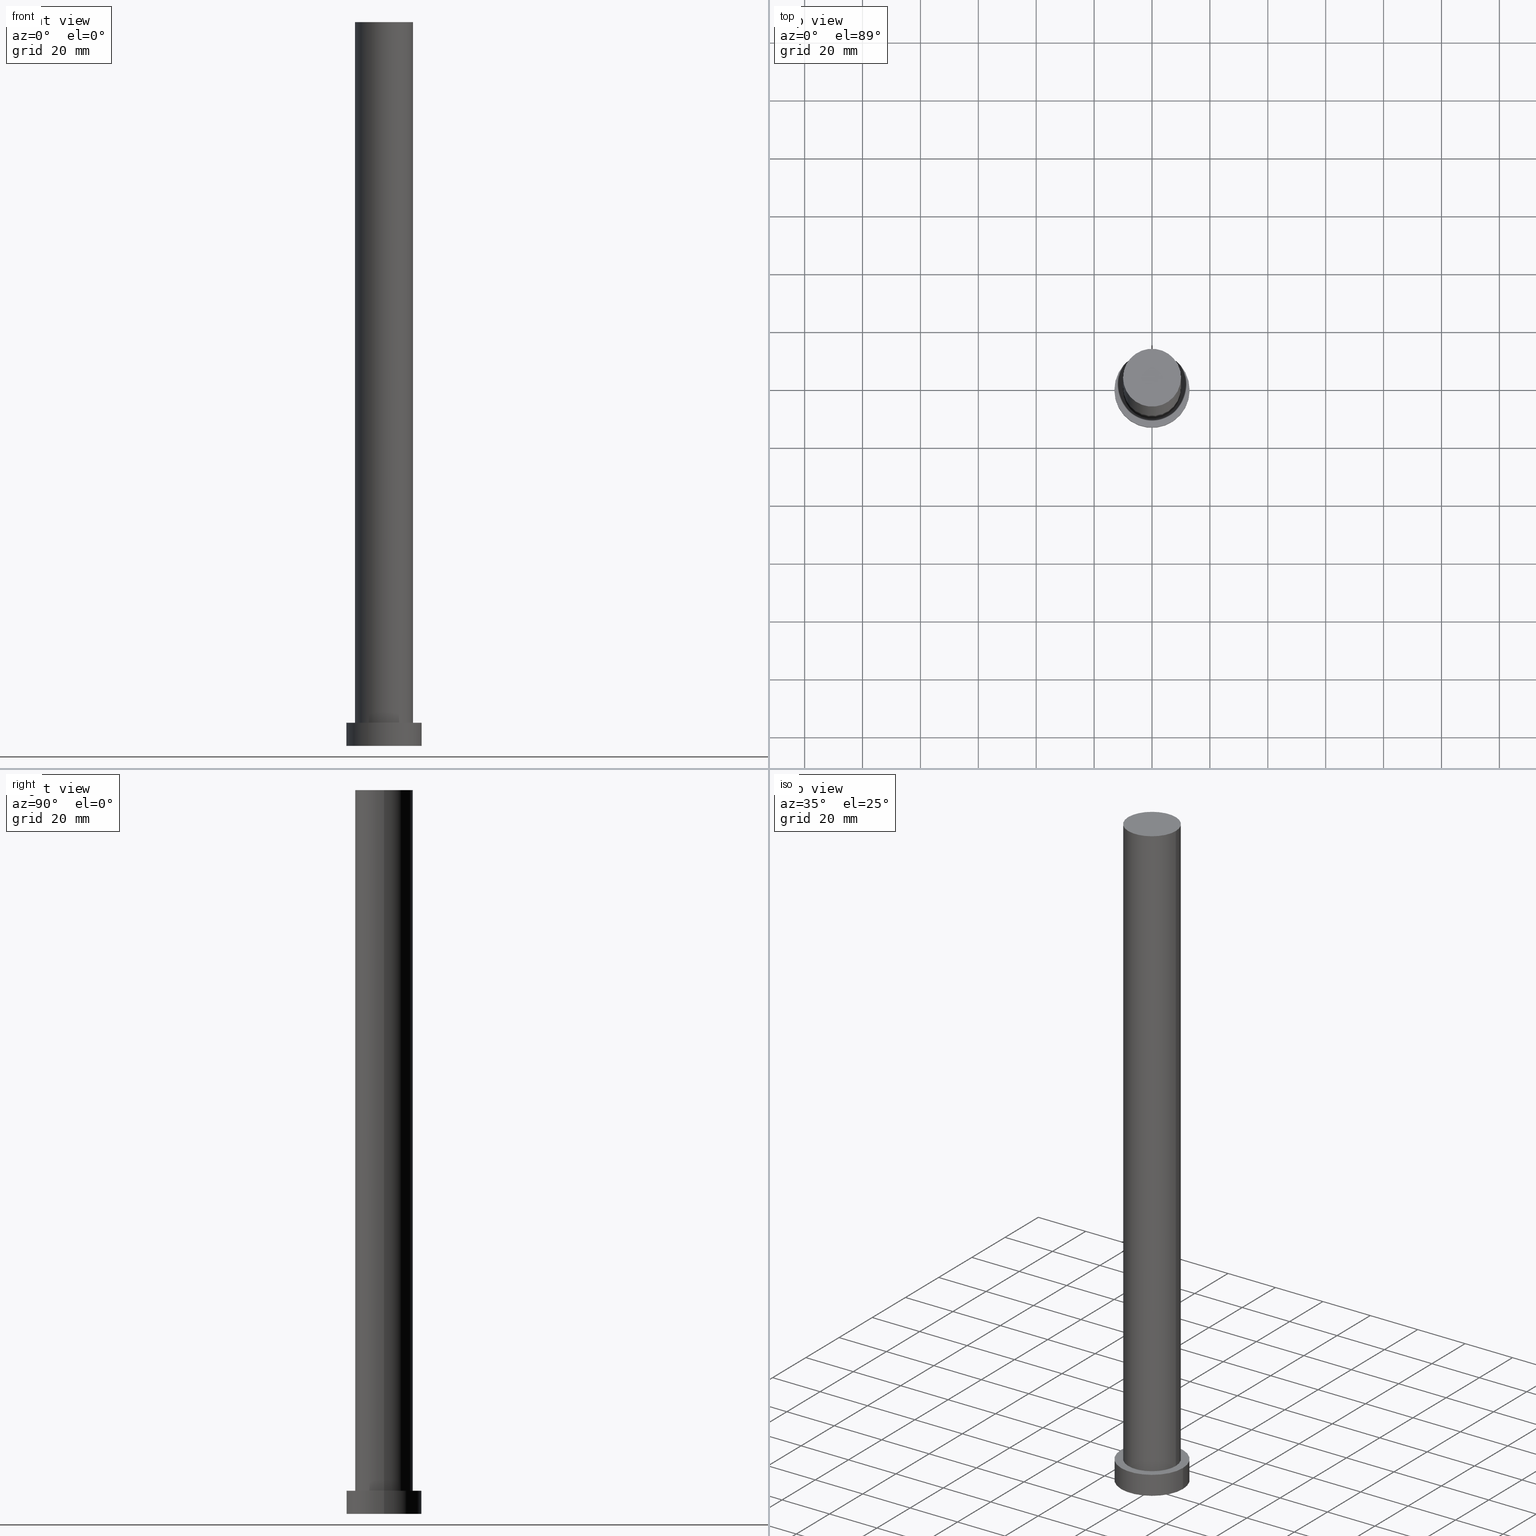
[diagram: canonical four-view strip — front | top / right | iso, engineering-drawing reading convention]
A machine part, canonical four-view strip (front | top / right | iso — engineering-drawing reading convention). The complete STEP part file that produces these views, byte-faithful:
ISO-10303-21;
HEADER;
FILE_DESCRIPTION (( 'STEP AP203' ),
    '1' );
FILE_NAME ('96cc.STEP',
    '2023-02-13T07:54:06',
    ( '' ),
    ( '' ),
    'SwSTEP 2.0',
    'SolidWorks 2019',
    '' );
FILE_SCHEMA (( 'CONFIG_CONTROL_DESIGN' ));
ENDSEC;

DATA;
#1 = DIRECTION ( 'NONE',  ( 1.000000000000000000, 0.000000000000000000, 0.000000000000000000 ) ) ;
#2 = CYLINDRICAL_SURFACE ( 'NONE', #174, 10.00000000000000000 ) ;
#3 = EDGE_LOOP ( 'NONE', ( #165, #99 ) ) ;
#4 = DIRECTION ( 'NONE',  ( 0.000000000000000000, 0.000000000000000000, 1.000000000000000000 ) ) ;
#5 = FACE_BOUND ( 'NONE', #244, .T. ) ;
#6 = DIRECTION ( 'NONE',  ( 0.000000000000000000, 0.000000000000000000, 1.000000000000000000 ) ) ;
#7 = CARTESIAN_POINT ( 'NONE',  ( 0.000000000000000000, 0.000000000000000000, 8.000000000000000000 ) ) ;
#8 = AXIS2_PLACEMENT_3D ( 'NONE', #200, #137, #1 ) ;
#9 = DATE_AND_TIME ( #41, #160 ) ;
#10 = PRODUCT_DEFINITION_SHAPE ( 'NONE', 'NONE',  #90 ) ;
#11 = ORIENTED_EDGE ( 'NONE', *, *, #172, .T. ) ;
#12 = EDGE_LOOP ( 'NONE', ( #141, #186 ) ) ;
#13 = PERSON_AND_ORGANIZATION_ROLE ( 'design_supplier' ) ;
#14 = EDGE_CURVE ( 'NONE', #49, #42, #93, .T. ) ;
#15 = COORDINATED_UNIVERSAL_TIME_OFFSET ( 1, 0, .AHEAD. ) ;
#16 = CIRCLE ( 'NONE', #156, 10.00000000000000000 ) ;
#17 = DIRECTION ( 'NONE',  ( -1.000000000000000000, 0.000000000000000000, 0.000000000000000000 ) ) ;
#18 = AXIS2_PLACEMENT_3D ( 'NONE', #97, #61, #78 ) ;
#19 = CARTESIAN_POINT ( 'NONE',  ( 0.000000000000000000, 0.000000000000000000, 8.000000000000000000 ) ) ;
#20 = CARTESIAN_POINT ( 'NONE',  ( 13.00000000000000178, 1.592040838891559293E-15, 0.000000000000000000 ) ) ;
#21 = DIRECTION ( 'NONE',  ( 0.000000000000000000, 0.000000000000000000, 1.000000000000000000 ) ) ;
#22 = CIRCLE ( 'NONE', #8, 13.00000000000000178 ) ;
#23 = AXIS2_PLACEMENT_3D ( 'NONE', #159, #62, #143 ) ;
#24 = CARTESIAN_POINT ( 'NONE',  ( 13.00000000000000178, 1.592040838891559293E-15, 8.000000000000000000 ) ) ;
#25 = APPLICATION_CONTEXT ( 'configuration controlled 3d designs of mechanical parts and assemblies' ) ;
#26 = SHAPE_DEFINITION_REPRESENTATION ( #10, #230 ) ;
#27 = DATE_AND_TIME ( #44, #166 ) ;
#28 = ORIENTED_EDGE ( 'NONE', *, *, #239, .F. ) ;
#29 = EDGE_LOOP ( 'NONE', ( #209, #206 ) ) ;
#30 = CARTESIAN_POINT ( 'NONE',  ( 10.00000000000000000, 1.224646799147353256E-15, 250.0000000000000000 ) ) ;
#31 = VERTEX_POINT ( 'NONE', #20 ) ;
#32 = EDGE_CURVE ( 'NONE', #31, #213, #216, .T. ) ;
#33 = DIRECTION ( 'NONE',  ( -0.000000000000000000, -0.000000000000000000, -1.000000000000000000 ) ) ;
#34 = DIRECTION ( 'NONE',  ( 0.000000000000000000, 0.000000000000000000, 1.000000000000000000 ) ) ;
#35 = CARTESIAN_POINT ( 'NONE',  ( -13.00000000000000178, 0.000000000000000000, 8.000000000000000000 ) ) ;
#36 = DIRECTION ( 'NONE',  ( -1.000000000000000000, 0.000000000000000000, 0.000000000000000000 ) ) ;
#37 = ORIENTED_EDGE ( 'NONE', *, *, #96, .F. ) ;
#38 = DIRECTION ( 'NONE',  ( 1.000000000000000000, 0.000000000000000000, 0.000000000000000000 ) ) ;
#39 = CARTESIAN_POINT ( 'NONE',  ( -13.00000000000000178, 0.000000000000000000, 0.000000000000000000 ) ) ;
#40 = CARTESIAN_POINT ( 'NONE',  ( 0.000000000000000000, 0.000000000000000000, 0.000000000000000000 ) ) ;
#41 = CALENDAR_DATE ( 2023, 13, 2 ) ;
#42 = VERTEX_POINT ( 'NONE', #95 ) ;
#43 = ORGANIZATION ( 'NEUR�EN�', 'NEUR�EN�', '' ) ;
#44 = CALENDAR_DATE ( 2023, 13, 2 ) ;
#45 = UNCERTAINTY_MEASURE_WITH_UNIT (LENGTH_MEASURE( 1.000000000000000082E-05 ), #236, 'distance_accuracy_value', 'NONE');
#46 = APPROVAL_STATUS ( 'not_yet_approved' ) ;
#47 = APPROVAL_STATUS ( 'not_yet_approved' ) ;
#48 = EDGE_LOOP ( 'NONE', ( #125, #217, #190, #118 ) ) ;
#49 = VERTEX_POINT ( 'NONE', #30 ) ;
#50 = DATE_TIME_ROLE ( 'classification_date' ) ;
#51 = CIRCLE ( 'NONE', #173, 13.00000000000000178 ) ;
#52 = PRODUCT_RELATED_PRODUCT_CATEGORY ( 'detail', '', ( #69 ) ) ;
#53 = EDGE_LOOP ( 'NONE', ( #108, #107, #11, #28 ) ) ;
#54 = PERSON_AND_ORGANIZATION ( #128, #43 ) ;
#55 = APPROVAL_PERSON_ORGANIZATION ( #129, #198, #127 ) ;
#56 = PERSON_AND_ORGANIZATION ( #128, #43 ) ;
#57 = PERSON_AND_ORGANIZATION ( #128, #43 ) ;
#58 = LINE ( 'NONE', #84, #242 ) ;
#59 = EDGE_CURVE ( 'NONE', #92, #71, #22, .T. ) ;
#60 = CYLINDRICAL_SURFACE ( 'NONE', #238, 13.00000000000000178 ) ;
#61 = DIRECTION ( 'NONE',  ( -0.000000000000000000, -0.000000000000000000, -1.000000000000000000 ) ) ;
#62 = DIRECTION ( 'NONE',  ( 0.000000000000000000, 0.000000000000000000, 1.000000000000000000 ) ) ;
#63 = PERSON_AND_ORGANIZATION_ROLE ( 'creator' ) ;
#64 = ORIENTED_EDGE ( 'NONE', *, *, #74, .F. ) ;
#65 = FACE_OUTER_BOUND ( 'NONE', #12, .T. ) ;
#66 = AXIS2_PLACEMENT_3D ( 'NONE', #7, #226, #214 ) ;
#67 = CC_DESIGN_PERSON_AND_ORGANIZATION_ASSIGNMENT ( #102, #194, ( #164 ) ) ;
#68 = EDGE_LOOP ( 'NONE', ( #91, #224, #145, #151 ) ) ;
#69 = PRODUCT ( '96cc', '96cc', '', ( #147 ) ) ;
#70 = DIRECTION ( 'NONE',  ( 0.000000000000000000, 0.000000000000000000, 1.000000000000000000 ) ) ;
#71 = VERTEX_POINT ( 'NONE', #35 ) ;
#72 = CC_DESIGN_SECURITY_CLASSIFICATION ( #187, ( #164 ) ) ;
#73 = AXIS2_PLACEMENT_3D ( 'NONE', #40, #106, #82 ) ;
#74 = EDGE_CURVE ( 'NONE', #71, #92, #51, .T. ) ;
#75 = ORIENTED_EDGE ( 'NONE', *, *, #193, .T. ) ;
#76 = CARTESIAN_POINT ( 'NONE',  ( 10.00000000000000000, 1.224646799147353256E-15, 250.0000000000000000 ) ) ;
#77 = ADVANCED_FACE ( 'NONE', ( #119 ), #219, .T. ) ;
#78 = DIRECTION ( 'NONE',  ( -1.000000000000000000, 0.000000000000000000, 0.000000000000000000 ) ) ;
#79 = APPROVAL_PERSON_ORGANIZATION ( #56, #109, #176 ) ;
#80 = CC_DESIGN_PERSON_AND_ORGANIZATION_ASSIGNMENT ( #240, #63, ( #90 ) ) ;
#81 = CIRCLE ( 'NONE', #66, 10.00000000000000000 ) ;
#82 = DIRECTION ( 'NONE',  ( 1.000000000000000000, 0.000000000000000000, 0.000000000000000000 ) ) ;
#83 = DIRECTION ( 'NONE',  ( -0.000000000000000000, -0.000000000000000000, -1.000000000000000000 ) ) ;
#84 = CARTESIAN_POINT ( 'NONE',  ( -13.00000000000000178, 0.000000000000000000, 8.000000000000000000 ) ) ;
#85 = EDGE_CURVE ( 'NONE', #92, #31, #150, .T. ) ;
#86 = CARTESIAN_POINT ( 'NONE',  ( 13.00000000000000178, 1.592040838891559293E-15, 8.000000000000000000 ) ) ;
#87 = VERTEX_POINT ( 'NONE', #124 ) ;
#88 = FACE_OUTER_BOUND ( 'NONE', #68, .T. ) ;
#89 = CLOSED_SHELL ( 'NONE', ( #223, #130, #255, #134, #152, #189, #77 ) ) ;
#90 = PRODUCT_DEFINITION ( 'NEZN�M�', '', #164, #222 ) ;
#91 = ORIENTED_EDGE ( 'NONE', *, *, #14, .F. ) ;
#92 = VERTEX_POINT ( 'NONE', #24 ) ;
#93 = LINE ( 'NONE', #76, #227 ) ;
#94 = AXIS2_PLACEMENT_3D ( 'NONE', #162, #34, #136 ) ;
#95 = CARTESIAN_POINT ( 'NONE',  ( 10.00000000000000000, 1.224646799147353256E-15, 8.000000000000000000 ) ) ;
#96 = EDGE_CURVE ( 'NONE', #237, #42, #81, .T. ) ;
#97 = CARTESIAN_POINT ( 'NONE',  ( 0.000000000000000000, 0.000000000000000000, 8.000000000000000000 ) ) ;
#98 = DIRECTION ( 'NONE',  ( 1.000000000000000000, 0.000000000000000000, 0.000000000000000000 ) ) ;
#99 = ORIENTED_EDGE ( 'NONE', *, *, #32, .F. ) ;
#100 = FACE_OUTER_BOUND ( 'NONE', #3, .T. ) ;
#101 = DIRECTION ( 'NONE',  ( 1.000000000000000000, 0.000000000000000000, 0.000000000000000000 ) ) ;
#102 = PERSON_AND_ORGANIZATION ( #128, #43 ) ;
#103 = EDGE_CURVE ( 'NONE', #71, #213, #58, .T. ) ;
#104 = ORIENTED_EDGE ( 'NONE', *, *, #103, .T. ) ;
#105 = DIRECTION ( 'NONE',  ( -0.000000000000000000, -0.000000000000000000, -1.000000000000000000 ) ) ;
#106 = DIRECTION ( 'NONE',  ( 0.000000000000000000, 0.000000000000000000, 1.000000000000000000 ) ) ;
#107 = ORIENTED_EDGE ( 'NONE', *, *, #14, .T. ) ;
#108 = ORIENTED_EDGE ( 'NONE', *, *, #155, .F. ) ;
#109 = APPROVAL ( #196, 'NEUR�EN�' ) ;
#110 = DIRECTION ( 'NONE',  ( 1.000000000000000000, 0.000000000000000000, -0.000000000000000000 ) ) ;
#111 = CC_DESIGN_DATE_AND_TIME_ASSIGNMENT ( #9, #149, ( #90 ) ) ;
#112 = LOCAL_TIME ( 8, 54, 6.000000000000000000, #203 ) ;
#113 = CARTESIAN_POINT ( 'NONE',  ( 0.000000000000000000, 0.000000000000000000, 8.000000000000000000 ) ) ;
#114 = PERSON_AND_ORGANIZATION_ROLE ( 'classification_officer' ) ;
#115 = DIRECTION ( 'NONE',  ( 1.000000000000000000, 0.000000000000000000, -0.000000000000000000 ) ) ;
#116 = DIRECTION ( 'NONE',  ( 0.000000000000000000, 0.000000000000000000, 1.000000000000000000 ) ) ;
#117 = PLANE ( 'NONE',  #126 ) ;
#118 = ORIENTED_EDGE ( 'NONE', *, *, #103, .F. ) ;
#119 = FACE_OUTER_BOUND ( 'NONE', #29, .T. ) ;
#120 = EDGE_CURVE ( 'NONE', #87, #49, #138, .T. ) ;
#121 = FACE_OUTER_BOUND ( 'NONE', #53, .T. ) ;
#122 = DIRECTION ( 'NONE',  ( -0.000000000000000000, -0.000000000000000000, -1.000000000000000000 ) ) ;
#123 =( GEOMETRIC_REPRESENTATION_CONTEXT ( 3 ) GLOBAL_UNCERTAINTY_ASSIGNED_CONTEXT ( ( #45 ) ) GLOBAL_UNIT_ASSIGNED_CONTEXT ( ( #236, #195, #205 ) ) REPRESENTATION_CONTEXT ( 'NONE', 'WORKASPACE' ) );
#124 = CARTESIAN_POINT ( 'NONE',  ( -10.00000000000000000, 0.000000000000000000, 250.0000000000000000 ) ) ;
#125 = ORIENTED_EDGE ( 'NONE', *, *, #59, .F. ) ;
#126 = AXIS2_PLACEMENT_3D ( 'NONE', #175, #4, #115 ) ;
#127 = APPROVAL_ROLE ( '' ) ;
#128 = PERSON ( 'NEUR�EN�', 'NEUR�EN�', 'NEUR�EN�', ('NEUR�EN�'), ('NEUR�EN�'), ('NEUR�EN�') ) ;
#129 = PERSON_AND_ORGANIZATION ( #128, #43 ) ;
#130 = ADVANCED_FACE ( 'NONE', ( #181 ), #60, .T. ) ;
#131 = APPLICATION_CONTEXT ( 'configuration controlled 3d designs of mechanical parts and assemblies' ) ;
#132 = AXIS2_PLACEMENT_3D ( 'NONE', #171, #33, #17 ) ;
#133 = CIRCLE ( 'NONE', #23, 13.00000000000000178 ) ;
#134 = ADVANCED_FACE ( 'NONE', ( #5, #65 ), #212, .T. ) ;
#135 = CARTESIAN_POINT ( 'NONE',  ( -10.00000000000000000, 0.000000000000000000, 250.0000000000000000 ) ) ;
#136 = DIRECTION ( 'NONE',  ( 1.000000000000000000, 0.000000000000000000, -0.000000000000000000 ) ) ;
#137 = DIRECTION ( 'NONE',  ( 0.000000000000000000, 0.000000000000000000, 1.000000000000000000 ) ) ;
#138 = CIRCLE ( 'NONE', #232, 10.00000000000000000 ) ;
#139 = DIRECTION ( 'NONE',  ( -0.000000000000000000, -0.000000000000000000, -1.000000000000000000 ) ) ;
#140 = CC_DESIGN_APPROVAL ( #198, ( #164 ) ) ;
#141 = ORIENTED_EDGE ( 'NONE', *, *, #74, .T. ) ;
#142 = CALENDAR_DATE ( 2023, 13, 2 ) ;
#143 = DIRECTION ( 'NONE',  ( 1.000000000000000000, 0.000000000000000000, 0.000000000000000000 ) ) ;
#144 = COORDINATED_UNIVERSAL_TIME_OFFSET ( 1, 0, .AHEAD. ) ;
#145 = ORIENTED_EDGE ( 'NONE', *, *, #239, .T. ) ;
#146 = DIRECTION ( 'NONE',  ( 1.000000000000000000, 0.000000000000000000, 0.000000000000000000 ) ) ;
#147 = MECHANICAL_CONTEXT ( 'NONE', #25, 'mechanical' ) ;
#148 = CC_DESIGN_APPROVAL ( #109, ( #90 ) ) ;
#149 = DATE_TIME_ROLE ( 'creation_date' ) ;
#150 = LINE ( 'NONE', #86, #211 ) ;
#151 = ORIENTED_EDGE ( 'NONE', *, *, #96, .T. ) ;
#152 = ADVANCED_FACE ( 'NONE', ( #100 ), #117, .F. ) ;
#153 = CC_DESIGN_APPROVAL ( #163, ( #187 ) ) ;
#154 = DATE_AND_TIME ( #250, #235 ) ;
#155 = EDGE_CURVE ( 'NONE', #49, #87, #221, .T. ) ;
#156 = AXIS2_PLACEMENT_3D ( 'NONE', #19, #179, #146 ) ;
#157 = DIRECTION ( 'NONE',  ( 0.000000000000000000, 0.000000000000000000, 1.000000000000000000 ) ) ;
#158 = CYLINDRICAL_SURFACE ( 'NONE', #18, 13.00000000000000178 ) ;
#159 = CARTESIAN_POINT ( 'NONE',  ( 0.000000000000000000, 0.000000000000000000, 0.000000000000000000 ) ) ;
#160 = LOCAL_TIME ( 8, 54, 6.000000000000000000, #144 ) ;
#161 = APPROVAL_DATE_TIME ( #201, #109 ) ;
#162 = CARTESIAN_POINT ( 'NONE',  ( 0.000000000000000000, 0.000000000000000000, 8.000000000000000000 ) ) ;
#163 = APPROVAL ( #46, 'NEUR�EN�' ) ;
#164 = PRODUCT_DEFINITION_FORMATION_WITH_SPECIFIED_SOURCE ( 'LIBOVOLN�', '', #69, .NOT_KNOWN. ) ;
#165 = ORIENTED_EDGE ( 'NONE', *, *, #193, .F. ) ;
#166 = LOCAL_TIME ( 8, 54, 6.000000000000000000, #220 ) ;
#167 = PERSON_AND_ORGANIZATION ( #128, #43 ) ;
#168 = ORIENTED_EDGE ( 'NONE', *, *, #85, .F. ) ;
#169 = EDGE_LOOP ( 'NONE', ( #168, #64, #104, #75 ) ) ;
#170 = COORDINATED_UNIVERSAL_TIME_OFFSET ( 1, 0, .AHEAD. ) ;
#171 = CARTESIAN_POINT ( 'NONE',  ( 0.000000000000000000, 0.000000000000000000, 250.0000000000000000 ) ) ;
#172 = EDGE_CURVE ( 'NONE', #42, #237, #16, .T. ) ;
#173 = AXIS2_PLACEMENT_3D ( 'NONE', #113, #116, #38 ) ;
#174 = AXIS2_PLACEMENT_3D ( 'NONE', #218, #83, #202 ) ;
#175 = CARTESIAN_POINT ( 'NONE',  ( 0.000000000000000000, 0.000000000000000000, 0.000000000000000000 ) ) ;
#176 = APPROVAL_ROLE ( '' ) ;
#177 = AXIS2_PLACEMENT_3D ( 'NONE', #188, #70, #110 ) ;
#178 = CC_DESIGN_PERSON_AND_ORGANIZATION_ASSIGNMENT ( #249, #13, ( #164 ) ) ;
#179 = DIRECTION ( 'NONE',  ( 0.000000000000000000, 0.000000000000000000, 1.000000000000000000 ) ) ;
#180 = LOCAL_TIME ( 8, 54, 6.000000000000000000, #15 ) ;
#181 = FACE_OUTER_BOUND ( 'NONE', #48, .T. ) ;
#182 = CARTESIAN_POINT ( 'NONE',  ( 0.000000000000000000, 0.000000000000000000, 8.000000000000000000 ) ) ;
#183 = CARTESIAN_POINT ( 'NONE',  ( 0.000000000000000000, 0.000000000000000000, 0.000000000000000000 ) ) ;
#184 = CC_DESIGN_PERSON_AND_ORGANIZATION_ASSIGNMENT ( #57, #114, ( #187 ) ) ;
#185 = APPROVAL_DATE_TIME ( #27, #163 ) ;
#186 = ORIENTED_EDGE ( 'NONE', *, *, #59, .T. ) ;
#187 = SECURITY_CLASSIFICATION ( '', '', #234 ) ;
#188 = CARTESIAN_POINT ( 'NONE',  ( 0.000000000000000000, 0.000000000000000000, 250.0000000000000000 ) ) ;
#189 = ADVANCED_FACE ( 'NONE', ( #88 ), #2, .T. ) ;
#190 = ORIENTED_EDGE ( 'NONE', *, *, #32, .T. ) ;
#191 = AXIS2_PLACEMENT_3D ( 'NONE', #183, #6, #243 ) ;
#192 = CALENDAR_DATE ( 2023, 13, 2 ) ;
#193 = EDGE_CURVE ( 'NONE', #213, #31, #133, .T. ) ;
#194 = PERSON_AND_ORGANIZATION_ROLE ( 'creator' ) ;
#195 =( NAMED_UNIT ( * ) PLANE_ANGLE_UNIT ( ) SI_UNIT ( $, .RADIAN. ) );
#196 = APPROVAL_STATUS ( 'not_yet_approved' ) ;
#197 = CARTESIAN_POINT ( 'NONE',  ( 0.000000000000000000, 0.000000000000000000, 250.0000000000000000 ) ) ;
#198 = APPROVAL ( #47, 'NEUR�EN�' ) ;
#199 = CARTESIAN_POINT ( 'NONE',  ( 0.000000000000000000, 0.000000000000000000, 250.0000000000000000 ) ) ;
#200 = CARTESIAN_POINT ( 'NONE',  ( 0.000000000000000000, 0.000000000000000000, 8.000000000000000000 ) ) ;
#201 = DATE_AND_TIME ( #142, #112 ) ;
#202 = DIRECTION ( 'NONE',  ( -1.000000000000000000, 0.000000000000000000, 0.000000000000000000 ) ) ;
#203 = COORDINATED_UNIVERSAL_TIME_OFFSET ( 1, 0, .AHEAD. ) ;
#204 = APPROVAL_ROLE ( '' ) ;
#205 =( NAMED_UNIT ( * ) SI_UNIT ( $, .STERADIAN. ) SOLID_ANGLE_UNIT ( ) );
#206 = ORIENTED_EDGE ( 'NONE', *, *, #155, .T. ) ;
#207 = CC_DESIGN_DATE_AND_TIME_ASSIGNMENT ( #225, #50, ( #187 ) ) ;
#208 = VECTOR ( 'NONE', #210, 1000.000000000000000 ) ;
#209 = ORIENTED_EDGE ( 'NONE', *, *, #120, .T. ) ;
#210 = DIRECTION ( 'NONE',  ( -0.000000000000000000, -0.000000000000000000, -1.000000000000000000 ) ) ;
#211 = VECTOR ( 'NONE', #122, 1000.000000000000000 ) ;
#212 = PLANE ( 'NONE',  #94 ) ;
#213 = VERTEX_POINT ( 'NONE', #39 ) ;
#214 = DIRECTION ( 'NONE',  ( 1.000000000000000000, 0.000000000000000000, 0.000000000000000000 ) ) ;
#215 = DIRECTION ( 'NONE',  ( -0.000000000000000000, -0.000000000000000000, -1.000000000000000000 ) ) ;
#216 = CIRCLE ( 'NONE', #73, 13.00000000000000178 ) ;
#217 = ORIENTED_EDGE ( 'NONE', *, *, #85, .T. ) ;
#218 = CARTESIAN_POINT ( 'NONE',  ( 0.000000000000000000, 0.000000000000000000, 250.0000000000000000 ) ) ;
#219 = PLANE ( 'NONE',  #177 ) ;
#220 = COORDINATED_UNIVERSAL_TIME_OFFSET ( 1, 0, .AHEAD. ) ;
#221 = CIRCLE ( 'NONE', #247, 10.00000000000000000 ) ;
#222 = DESIGN_CONTEXT ( 'detailed design', #131, 'design' ) ;
#223 = ADVANCED_FACE ( 'NONE', ( #121 ), #231, .T. ) ;
#224 = ORIENTED_EDGE ( 'NONE', *, *, #120, .F. ) ;
#225 = DATE_AND_TIME ( #192, #180 ) ;
#226 = DIRECTION ( 'NONE',  ( 0.000000000000000000, 0.000000000000000000, 1.000000000000000000 ) ) ;
#227 = VECTOR ( 'NONE', #215, 1000.000000000000000 ) ;
#228 = ORIENTED_EDGE ( 'NONE', *, *, #172, .F. ) ;
#229 = APPROVAL_DATE_TIME ( #154, #198 ) ;
#230 = ADVANCED_BREP_SHAPE_REPRESENTATION ( '96cc', ( #233, #191 ), #123 ) ;
#231 = CYLINDRICAL_SURFACE ( 'NONE', #132, 10.00000000000000000 ) ;
#232 = AXIS2_PLACEMENT_3D ( 'NONE', #199, #157, #98 ) ;
#233 = MANIFOLD_SOLID_BREP ( 'P�idat vysunut�m3', #89 ) ;
#234 = SECURITY_CLASSIFICATION_LEVEL ( 'unclassified' ) ;
#235 = LOCAL_TIME ( 8, 54, 6.000000000000000000, #170 ) ;
#236 =( LENGTH_UNIT ( ) NAMED_UNIT ( * ) SI_UNIT ( .MILLI., .METRE. ) );
#237 = VERTEX_POINT ( 'NONE', #251 ) ;
#238 = AXIS2_PLACEMENT_3D ( 'NONE', #182, #139, #36 ) ;
#239 = EDGE_CURVE ( 'NONE', #87, #237, #253, .T. ) ;
#240 = PERSON_AND_ORGANIZATION ( #128, #43 ) ;
#241 = APPLICATION_PROTOCOL_DEFINITION ( 'international standard', 'config_control_design', 1994, #25 ) ;
#242 = VECTOR ( 'NONE', #105, 1000.000000000000000 ) ;
#243 = DIRECTION ( 'NONE',  ( 1.000000000000000000, 0.000000000000000000, 0.000000000000000000 ) ) ;
#244 = EDGE_LOOP ( 'NONE', ( #37, #228 ) ) ;
#245 = APPROVAL_PERSON_ORGANIZATION ( #54, #163, #204 ) ;
#246 = CC_DESIGN_PERSON_AND_ORGANIZATION_ASSIGNMENT ( #167, #252, ( #69 ) ) ;
#247 = AXIS2_PLACEMENT_3D ( 'NONE', #197, #21, #101 ) ;
#248 = APPLICATION_PROTOCOL_DEFINITION ( 'international standard', 'config_control_design', 1994, #131 ) ;
#249 = PERSON_AND_ORGANIZATION ( #128, #43 ) ;
#250 = CALENDAR_DATE ( 2023, 13, 2 ) ;
#251 = CARTESIAN_POINT ( 'NONE',  ( -10.00000000000000000, 0.000000000000000000, 8.000000000000000000 ) ) ;
#252 = PERSON_AND_ORGANIZATION_ROLE ( 'design_owner' ) ;
#253 = LINE ( 'NONE', #135, #208 ) ;
#254 = FACE_OUTER_BOUND ( 'NONE', #169, .T. ) ;
#255 = ADVANCED_FACE ( 'NONE', ( #254 ), #158, .T. ) ;
ENDSEC;
END-ISO-10303-21;
